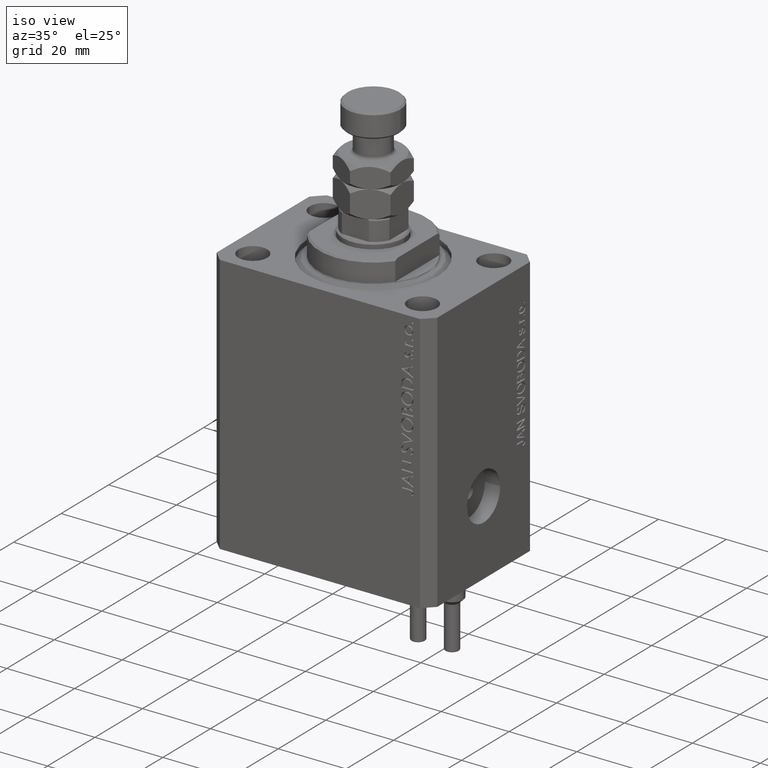
[diagram: clean part render]
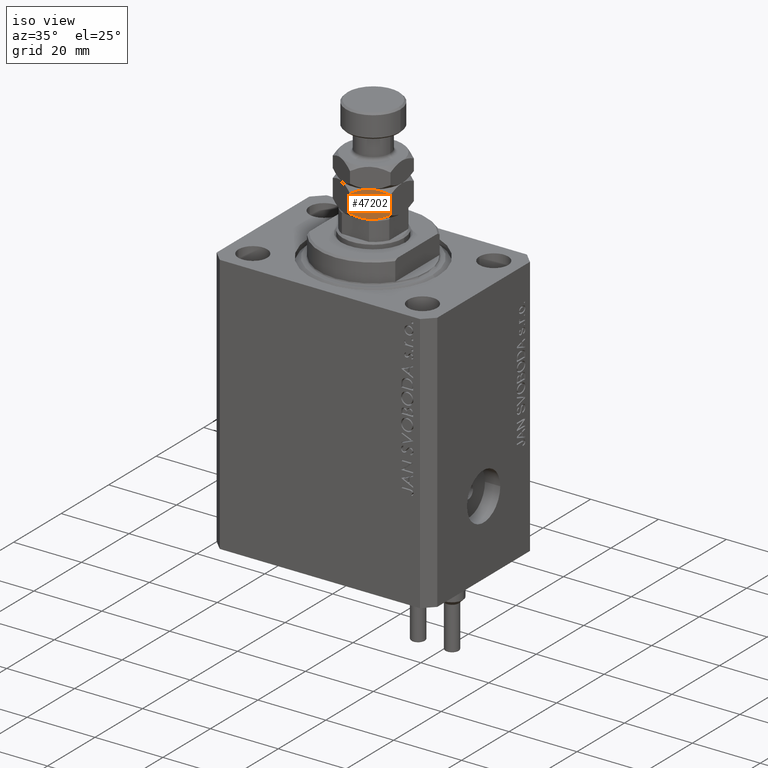
[diagram: same view with one face highlighted and labeled with its STEP entity id]
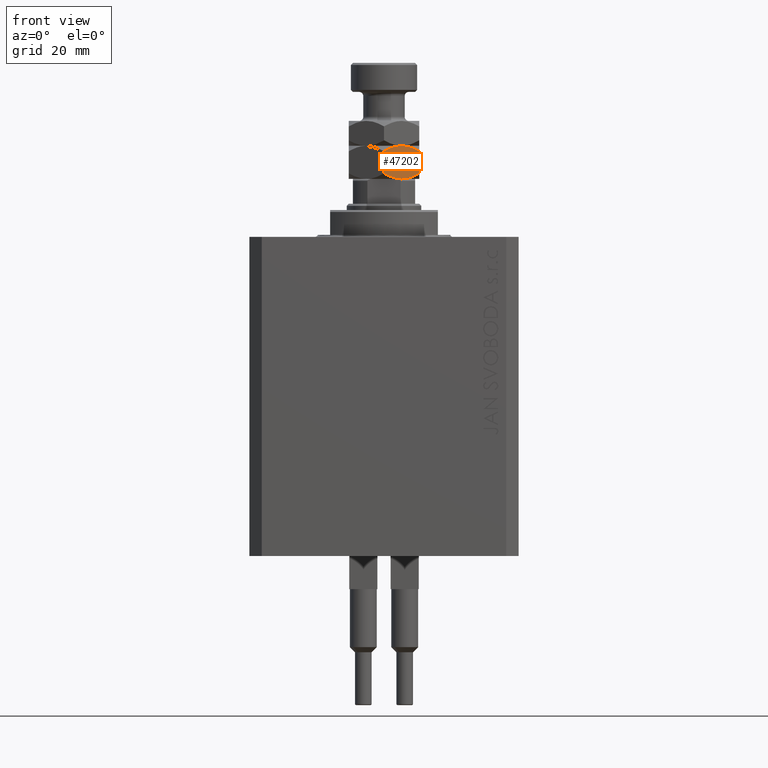
[diagram: same view with one face highlighted and labeled with its STEP entity id]
A machine part, iso view. The second image highlights one B-rep face of the part: STEP entity #47202.
A second angle (front view) of the same face is appended — the face is thin or edge-on in the first view.
In plain terms, the highlighted planar face has unit normal (-0.5, 0.866, 0).
Its self-contained STEP definition (entity closure, byte-faithful):
#57 = CARTESIAN_POINT ( 'NONE',  ( -1.010883460254179403E-15, -9.814954576223637872, 1.314954576223630323 ) ) ;
#642 = CARTESIAN_POINT ( 'NONE',  ( 8.500000000000001776, -4.907477288111817160, 1.314954576223629878 ) ) ;
#818 = DIRECTION ( 'NONE',  ( -0.000000000000000000, -0.000000000000000000, -1.000000000000000000 ) ) ;
#1322 = CARTESIAN_POINT ( 'NONE',  ( 8.500000000000001776, -4.907477288111821601, 8.000000000000000000 ) ) ;
#3150 = VERTEX_POINT ( 'NONE', #23891 ) ;
#3433 = FACE_OUTER_BOUND ( 'NONE', #42906, .T. ) ;
#4090 = CARTESIAN_POINT ( 'NONE',  ( 8.500000000000001776, -4.907477288111821601, 6.685045423776368345 ) ) ;
#4796 = CARTESIAN_POINT ( 'NONE',  ( -9.757819552369539906E-16, -9.814954576223637872, 8.000000000000000000 ) ) ;
#5114 = LINE ( 'NONE', #1322, #7792 ) ;
#5884 = CARTESIAN_POINT ( 'NONE',  ( 4.989245346831671313, -6.934412432177284202, 8.000000000000001776 ) ) ;
#7095 = ORIENTED_EDGE ( 'NONE', *, *, #11170, .T. ) ;
#7792 = VECTOR ( 'NONE', #818, 1000.000000000000000 ) ;
#8033 = CARTESIAN_POINT ( 'NONE',  ( 4.249999999999994671, -7.361215932167728404, 8.000000000000000000 ) ) ;
#8165 = EDGE_CURVE ( 'NONE', #17696, #12083, #38802, .T. ) ;
#8596 = LINE ( 'NONE', #4796, #31024 ) ;
#9225 = CARTESIAN_POINT ( 'NONE',  ( 5.733718739115172269, -6.504590518737895621, 0.1608217079418340634 ) ) ;
#10825 = CARTESIAN_POINT ( 'NONE',  ( 2.766281260884825066, -8.217841345597570069, 7.839178292058168296 ) ) ;
#10931 = EDGE_CURVE ( 'NONE', #12083, #39276, #47644, .T. ) ;
#11076 = CARTESIAN_POINT ( 'NONE',  ( 0.6664608216042839928, -9.430173241466070166, 7.069826758533944933 ) ) ;
#11170 = EDGE_CURVE ( 'NONE', #3150, #39276, #8596, .T. ) ;
#11765 = DIRECTION ( 'NONE',  ( -0.8660254037844389297, -0.4999999999999995559, 0.000000000000000000 ) ) ;
#11925 = CARTESIAN_POINT ( 'NONE',  ( 3.510754653168322914, -7.788019432158174382, -1.295960409299079124E-15 ) ) ;
#12007 = CARTESIAN_POINT ( 'NONE',  ( 4.249999999999997335, -7.361215932167732845, 0.000000000000000000 ) ) ;
#12083 = VERTEX_POINT ( 'NONE', #35107 ) ;
#12257 = CARTESIAN_POINT ( 'NONE',  ( 7.151994807070145121, -5.685748449118888104, 0.6032092124201289263 ) ) ;
#12485 = CARTESIAN_POINT ( 'NONE',  ( 7.149107353189445568, -5.687415521394182605, 7.399061587263878970 ) ) ;
#12514 = CARTESIAN_POINT ( 'NONE',  ( 6.092930036521920556, -6.297199779484154547, 0.2536240893246553552 ) ) ;
#13153 = ORIENTED_EDGE ( 'NONE', *, *, #10931, .F. ) ;
#14622 = CARTESIAN_POINT ( 'NONE',  ( 2.407069963478076335, -8.425232084851307590, 7.746375910675348031 ) ) ;
#15060 = PLANE ( 'NONE',  #29286 ) ;
#15082 = B_SPLINE_CURVE_WITH_KNOTS ( 'NONE', 3,
 ( #48949, #11076, #18659, #14622, #10825, #30747, #46158, #41866 ),
 .UNSPECIFIED., .F., .F.,
 ( 4, 2, 2, 4 ),
 ( 2.544313836662128767E-07, 0.002543776790731947998, 0.003815537970406090475, 0.005087299150080232951 ),
 .UNSPECIFIED. ) ;
#15722 = CARTESIAN_POINT ( 'NONE',  ( 1.350892646810552433, -9.035016342941277756, 0.6009384127361203642 ) ) ;
#16216 = CARTESIAN_POINT ( 'NONE',  ( 4.249999999999997335, -7.361215932167732845, 0.000000000000000000 ) ) ;
#17679 = VERTEX_POINT ( 'NONE', #4090 ) ;
#17696 = VERTEX_POINT ( 'NONE', #35369 ) ;
#18659 = CARTESIAN_POINT ( 'NONE',  ( 1.348005192929855101, -9.036683415216574033, 7.396790787579876181 ) ) ;
#19745 = CARTESIAN_POINT ( 'NONE',  ( 2.784079206026082609, -8.207565697179241226, 0.1305202873832139177 ) ) ;
#20407 = EDGE_CURVE ( 'NONE', #17679, #17696, #5114, .T. ) ;
#21021 = EDGE_CURVE ( 'NONE', #3150, #21111, #15082, .T. ) ;
#21036 = CARTESIAN_POINT ( 'NONE',  ( 5.715920793973914726, -6.514866167156222687, 7.869479712616787026 ) ) ;
#21111 = VERTEX_POINT ( 'NONE', #8033 ) ;
#23530 = EDGE_CURVE ( 'NONE', #21111, #17679, #26931, .T. ) ;
#23891 = CARTESIAN_POINT ( 'NONE',  ( -7.581970720220202129E-16, -9.814954576223637872, 6.685045423776371010 ) ) ;
#24106 = CARTESIAN_POINT ( 'NONE',  ( 5.000029324638989081, -6.928186299687297378, 0.03373674959836757414 ) ) ;
#26389 = CARTESIAN_POINT ( 'NONE',  ( -9.757819552369539906E-16, -9.814954576223637872, 8.000000000000000000 ) ) ;
#26931 = B_SPLINE_CURVE_WITH_KNOTS ( 'NONE', 3,
 ( #44028, #5884, #21036, #12485, #35943, #36423 ),
 .UNSPECIFIED., .F., .F.,
 ( 4, 2, 4 ),
 ( 0.005087299150080232951, 0.007613005268011856577, 0.01013871138594348020 ),
 .UNSPECIFIED. ) ;
#27548 = CARTESIAN_POINT ( 'NONE',  ( 0.6656893889372494932, -9.430618628324040742, 0.9306186283239298307 ) ) ;
#28073 = DIRECTION ( 'NONE',  ( -0.4999999999999995559, 0.8660254037844389297, 0.000000000000000000 ) ) ;
#28500 = DIRECTION ( 'NONE',  ( -0.000000000000000000, -0.000000000000000000, -1.000000000000000000 ) ) ;
#29286 = AXIS2_PLACEMENT_3D ( 'NONE', #26389, #28073, #11765 ) ;
#30747 = CARTESIAN_POINT ( 'NONE',  ( 3.499970675361007366, -7.794245564648166535, 7.966263250401633300 ) ) ;
#31024 = VECTOR ( 'NONE', #28500, 1000.000000000000000 ) ;
#31339 = ORIENTED_EDGE ( 'NONE', *, *, #23530, .F. ) ;
#35107 = CARTESIAN_POINT ( 'NONE',  ( 4.249999999999997335, -7.361215932167732845, 0.000000000000000000 ) ) ;
#35234 = CARTESIAN_POINT ( 'NONE',  ( 4.622229978650556070, -7.146308853793384763, -1.291725244562808017E-15 ) ) ;
#35369 = CARTESIAN_POINT ( 'NONE',  ( 8.500000000000001776, -4.907477288111817160, 1.314954576223629878 ) ) ;
#35416 = ORIENTED_EDGE ( 'NONE', *, *, #21021, .F. ) ;
#35943 = CARTESIAN_POINT ( 'NONE',  ( 7.834310611062749174, -5.291813236011422283, 7.069381371676068504 ) ) ;
#36423 = CARTESIAN_POINT ( 'NONE',  ( 8.500000000000001776, -4.907477288111821601, 6.685045423776368345 ) ) ;
#38080 = ORIENTED_EDGE ( 'NONE', *, *, #8165, .F. ) ;
#38802 = B_SPLINE_CURVE_WITH_KNOTS ( 'NONE', 3,
 ( #642, #39770, #12257, #12514, #9225, #24106, #35234, #12007 ),
 .UNSPECIFIED., .F., .F.,
 ( 4, 2, 2, 4 ),
 ( 2.544313836654547822E-07, 0.002543776790731953636, 0.003815537970406099148, 0.005087299150080244227 ),
 .UNSPECIFIED. ) ;
#39276 = VERTEX_POINT ( 'NONE', #48615 ) ;
#39770 = CARTESIAN_POINT ( 'NONE',  ( 7.833539178395718672, -5.292258622869395523, 0.9301732414660633941 ) ) ;
#41866 = CARTESIAN_POINT ( 'NONE',  ( 4.249999999999994671, -7.361215932167728404, 8.000000000000000000 ) ) ;
#42906 = EDGE_LOOP ( 'NONE', ( #38080, #48246, #31339, #35416, #7095, #13153 ) ) ;
#44028 = CARTESIAN_POINT ( 'NONE',  ( 4.249999999999994671, -7.361215932167728404, 8.000000000000000000 ) ) ;
#46158 = CARTESIAN_POINT ( 'NONE',  ( 3.877770021349439045, -7.576123010542081815, 8.000000000000003553 ) ) ;
#47202 = ADVANCED_FACE ( 'NONE', ( #3433 ), #15060, .F. ) ;
#47644 = B_SPLINE_CURVE_WITH_KNOTS ( 'NONE', 3,
 ( #16216, #11925, #19745, #15722, #27548, #57 ),
 .UNSPECIFIED., .F., .F.,
 ( 4, 2, 4 ),
 ( 0.005087299150080244227, 0.007613005268011863516, 0.01013871138594348367 ),
 .UNSPECIFIED. ) ;
#48246 = ORIENTED_EDGE ( 'NONE', *, *, #20407, .F. ) ;
#48615 = CARTESIAN_POINT ( 'NONE',  ( -1.010883460254179403E-15, -9.814954576223637872, 1.314954576223630323 ) ) ;
#48949 = CARTESIAN_POINT ( 'NONE',  ( -7.581970720220202129E-16, -9.814954576223637872, 6.685045423776371010 ) ) ;